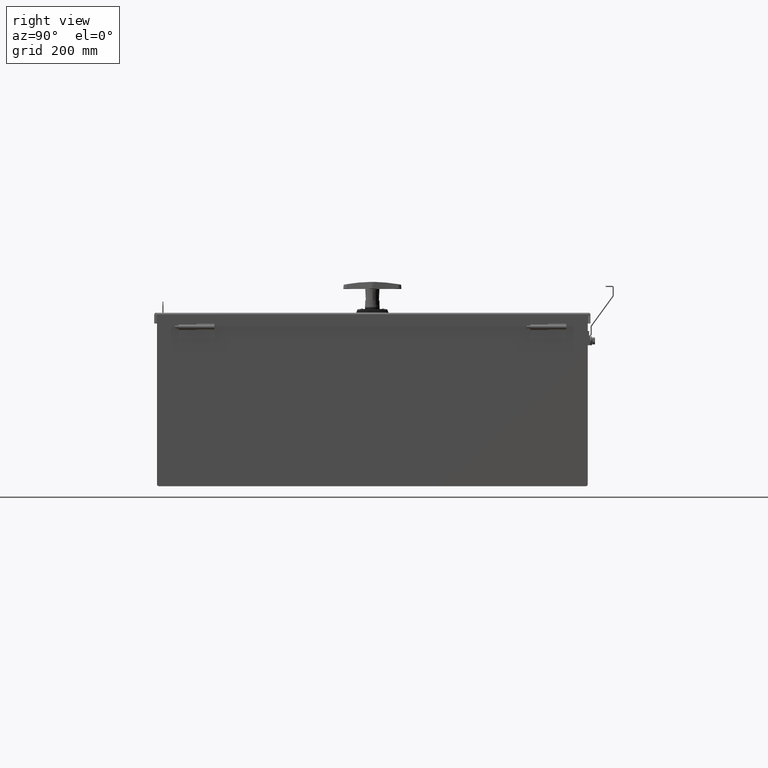
[diagram: clean part render]
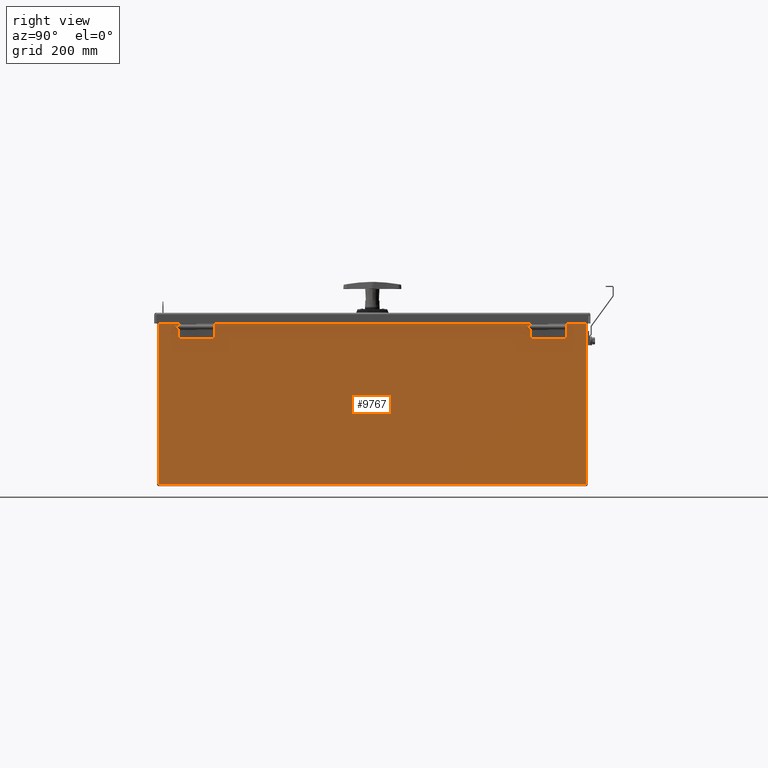
[diagram: same view with one face highlighted and labeled with its STEP entity id]
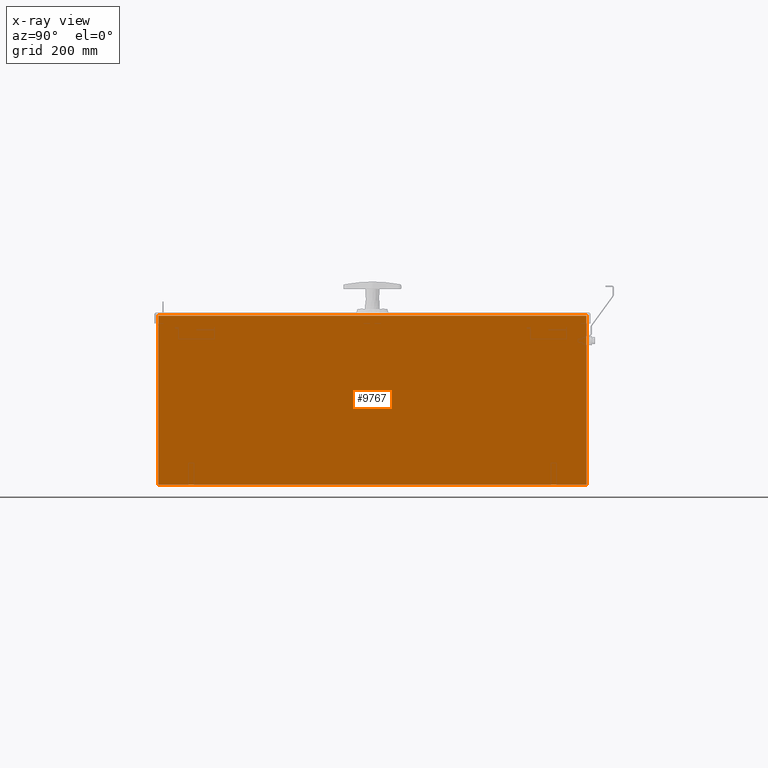
[diagram: x-ray of the same camera — body ghosted, the highlighted face saturated]
A machine part, right view. The second image highlights one B-rep face of the part: STEP entity #9767.
The next image is the same camera in x-ray: the body ghosted, the highlighted face saturated — about 0% of this face is hidden behind the body in this view.
In plain terms, the highlighted planar face has unit normal (1, 0, 0).
Its self-contained STEP definition (entity closure, byte-faithful):
#638=PLANE($,#10486);
#1068=LINE($,#14684,#1816);
#1083=LINE($,#14720,#1831);
#1086=LINE($,#14726,#1834);
#1087=LINE($,#14727,#1835);
#1816=VECTOR($,#11781,29.8126);
#1831=VECTOR($,#11820,11.78135);
#1834=VECTOR($,#11825,11.78135);
#1835=VECTOR($,#11826,29.8126);
#2725=FACE_OUTER_BOUND($,#3335,.T.);
#3335=EDGE_LOOP($,(#6982,#6983,#6984,#6985));
#4532=VERTEX_POINT($,#14681);
#4533=VERTEX_POINT($,#14683);
#4542=VERTEX_POINT($,#14719);
#4544=VERTEX_POINT($,#14725);
#5456=EDGE_CURVE($,#4533,#4532,#1068,.T.);
#5474=EDGE_CURVE($,#4533,#4542,#1083,.T.);
#5477=EDGE_CURVE($,#4544,#4532,#1086,.T.);
#5478=EDGE_CURVE($,#4542,#4544,#1087,.T.);
#6982=ORIENTED_EDGE($,*,*,#5456,.T.);
#6983=ORIENTED_EDGE($,*,*,#5477,.F.);
#6984=ORIENTED_EDGE($,*,*,#5478,.F.);
#6985=ORIENTED_EDGE($,*,*,#5474,.F.);
#9767=ADVANCED_FACE($,(#2725),#638,.T.);
#10486=AXIS2_PLACEMENT_3D($,#14724,#11823,#11824);
#11781=DIRECTION($,(-3.28416280676382E-016,1.,0.));
#11820=DIRECTION($,(-1.,0.,0.));
#11823=DIRECTION('center_axis',(0.,0.,1.));
#11824=DIRECTION('ref_axis',(1.,0.,0.));
#11825=DIRECTION($,(1.,4.69904562376591E-016,0.));
#11826=DIRECTION($,(-1.64208140338191E-016,1.,0.));
#14681=CARTESIAN_POINT('',(5.8282,14.9063,0.0937));
#14683=CARTESIAN_POINT('',(5.82820000000001,-14.9063,0.0937));
#14684=CARTESIAN_POINT($,(5.8282,-7.45315,0.0937));
#14719=CARTESIAN_POINT('',(-5.95315,-14.9063,0.0937));
#14720=CARTESIAN_POINT($,(5.95315000000001,-14.9063,0.0937));
#14724=CARTESIAN_POINT('Origin',(1.04902962956708E-015,-5.32786987656787E-015,
0.0937));
#14725=CARTESIAN_POINT('',(-5.95315,14.9063,0.0937));
#14726=CARTESIAN_POINT($,(-5.95315,14.9063,0.0937));
#14727=CARTESIAN_POINT($,(-5.95315,-14.9063,0.0937));